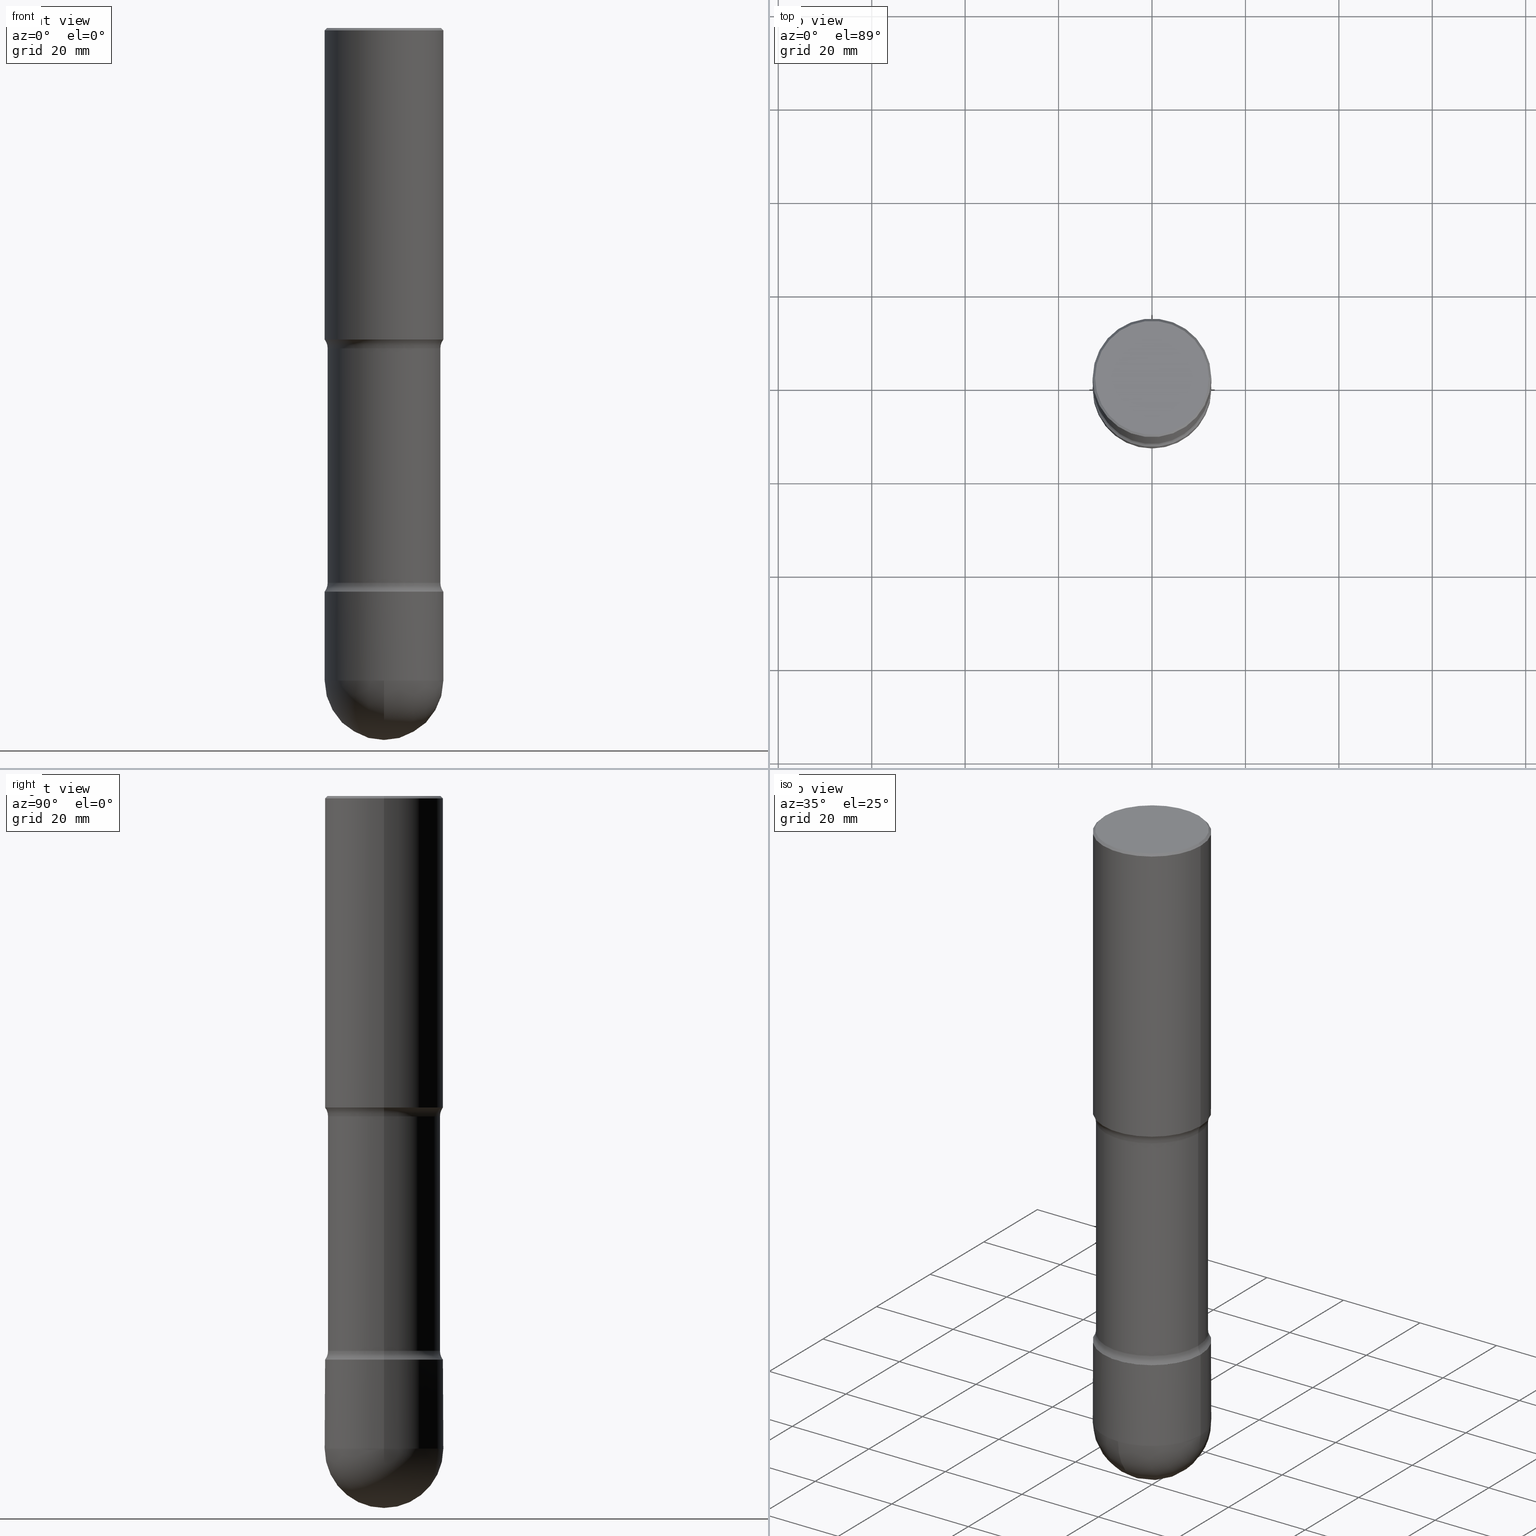
[diagram: canonical four-view strip — front | top / right | iso, engineering-drawing reading convention]
A machine part, canonical four-view strip (front | top / right | iso — engineering-drawing reading convention). The complete STEP part file that produces these views, byte-faithful:
ISO-10303-21;
HEADER;
FILE_DESCRIPTION (( 'STEP AP203' ),
    '1' );
FILE_NAME ('35231.STEP',
    '2024-02-29T19:24:45',
    ( '' ),
    ( '' ),
    'SwSTEP 2.0',
    'SolidWorks 2023',
    '' );
FILE_SCHEMA (( 'CONFIG_CONTROL_DESIGN' ));
ENDSEC;

DATA;
#1 = EDGE_CURVE ( 'NONE', #144, #248, #93, .T. ) ;
#2 = EDGE_LOOP ( 'NONE', ( #106, #254, #119, #318 ) ) ;
#3 = FACE_OUTER_BOUND ( 'NONE', #287, .T. ) ;
#4 = CIRCLE ( 'NONE', #172, 0.5000000000000000000 ) ;
#5 = APPROVAL_PERSON_ORGANIZATION ( #81, #520, #398 ) ;
#6 = DIRECTION ( 'NONE',  ( -2.438088387897960049E-29, 3.491481338843145188E-15, 1.000000000000000000 ) ) ;
#7 = CARTESIAN_POINT ( 'NONE',  ( 1.340732011955928297E-28, -1.926437970359467045E-14, -5.500000000000000888 ) ) ;
#8 = DIRECTION ( 'NONE',  ( 2.445468806185136597E-29, -3.491481338843145583E-15, -1.000000000000000000 ) ) ;
#9 = ORIENTED_EDGE ( 'NONE', *, *, #68, .T. ) ;
#10 = ADVANCED_FACE ( 'NONE', ( #485 ), #271, .T. ) ;
#11 = CARTESIAN_POINT ( 'NONE',  ( 0.000000000000000000, 0.000000000000000000, 0.000000000000000000 ) ) ;
#12 = VERTEX_POINT ( 'NONE', #450 ) ;
#13 = AXIS2_PLACEMENT_3D ( 'NONE', #49, #6, #405 ) ;
#14 = CIRCLE ( 'NONE', #451, 0.1249999999999883565 ) ;
#15 = CIRCLE ( 'NONE', #278, 0.4997860788667682908 ) ;
#16 = DIRECTION ( 'NONE',  ( -1.000000000000000000, 6.860497997771519729E-15, 0.000000000000000000 ) ) ;
#17 = ORIENTED_EDGE ( 'NONE', *, *, #170, .F. ) ;
#18 = CARTESIAN_POINT ( 'NONE',  ( 0.4994999999999991114, -2.007302563652160412E-14, -4.750000000000000000 ) ) ;
#19 = DIRECTION ( 'NONE',  ( -6.982962677686266711E-15, -1.000000000000000000, 3.491481338843145583E-15 ) ) ;
#20 = ORIENTED_EDGE ( 'NONE', *, *, #30, .T. ) ;
#21 = CYLINDRICAL_SURFACE ( 'NONE', #62, 0.4999999999999997780 ) ;
#22 = CARTESIAN_POINT ( 'NONE',  ( 4.890937612370354609E-31, -6.982962677686407473E-17, -0.02000000000000033348 ) ) ;
#23 = ORIENTED_EDGE ( 'NONE', *, *, #459, .T. ) ;
#24 = DIRECTION ( 'NONE',  ( -2.445468806185136877E-29, 3.491481338843145188E-15, 1.000000000000000000 ) ) ;
#25 = DIRECTION ( 'NONE',  ( 2.445468806185136597E-29, -3.491481338843145583E-15, -1.000000000000000000 ) ) ;
#26 = DIRECTION ( 'NONE',  ( 1.000000000000000000, -6.982962677686268288E-15, 0.000000000000000000 ) ) ;
#27 = VECTOR ( 'NONE', #180, 39.37007874015748143 ) ;
#28 = DIRECTION ( 'NONE',  ( -1.000000000000000000, 6.982962677686265922E-15, -4.876176775795935793E-29 ) ) ;
#29 = ORIENTED_EDGE ( 'NONE', *, *, #391, .F. ) ;
#30 = EDGE_CURVE ( 'NONE', #428, #514, #179, .T. ) ;
#31 = APPLICATION_PROTOCOL_DEFINITION ( 'international standard', 'config_control_design', 1994, #369 ) ;
#32 = DATE_AND_TIME ( #211, #513 ) ;
#33 = CONICAL_SURFACE ( 'NONE', #130, 0.4994999999999991114, 0.7853981633973289300 ) ;
#34 = AXIS2_PLACEMENT_3D ( 'NONE', #493, #284, #98 ) ;
#35 = EDGE_CURVE ( 'NONE', #70, #428, #373, .T. ) ;
#36 = SHAPE_DEFINITION_REPRESENTATION ( #417, #257 ) ;
#37 = DESIGN_CONTEXT ( 'detailed design', #369, 'design' ) ;
#38 = APPLICATION_CONTEXT ( 'configuration controlled 3d designs of mechanical parts and assemblies' ) ;
#39 = APPROVAL_DATE_TIME ( #265, #520 ) ;
#40 = PERSON ( 'UNSPECIFIED', 'UNSPECIFIED', 'UNSPECIFIED', ('UNSPECIFIED'), ('UNSPECIFIED'), ('UNSPECIFIED') ) ;
#41 = PERSON_AND_ORGANIZATION_ROLE ( 'creator' ) ;
#42 = EDGE_CURVE ( 'NONE', #60, #514, #352, .T. ) ;
#43 = AXIS2_PLACEMENT_3D ( 'NONE', #279, #371, #406 ) ;
#44 = CC_DESIGN_APPROVAL ( #520, ( #167 ) ) ;
#45 = COORDINATED_UNIVERSAL_TIME_OFFSET ( 5, 0, .BEHIND. ) ;
#46 = ADVANCED_FACE ( 'NONE', ( #246 ), #33, .T. ) ;
#47 = CARTESIAN_POINT ( 'NONE',  ( 1.340732011955928297E-28, -1.926437970359467045E-14, -5.500000000000000888 ) ) ;
#48 = DIRECTION ( 'NONE',  ( 0.7071067811864630848, -2.468850131081372353E-15, 0.7071067811866319497 ) ) ;
#49 = CARTESIAN_POINT ( 'NONE',  ( 3.351822085289404392E-15, 0.4799999999999995381, -1.667374017664507456E-15 ) ) ;
#50 = CYLINDRICAL_SURFACE ( 'NONE', #400, 0.4999999999999997780 ) ;
#51 = AXIS2_PLACEMENT_3D ( 'NONE', #156, #25, #202 ) ;
#52 = SECURITY_CLASSIFICATION ( '', '', #521 ) ;
#53 = DIRECTION ( 'NONE',  ( 2.445468806185136877E-29, -3.491481338843145188E-15, -1.000000000000000000 ) ) ;
#54 = DIRECTION ( 'NONE',  ( -1.000000000000000000, 6.982962677686266711E-15, -4.883557194083113462E-29 ) ) ;
#55 = DIRECTION ( 'NONE',  ( 2.445468806185136597E-29, -3.491481338843145583E-15, -1.000000000000000000 ) ) ;
#56 = CC_DESIGN_DATE_AND_TIME_ASSIGNMENT ( #517, #127, ( #264 ) ) ;
#57 = CARTESIAN_POINT ( 'NONE',  ( 1.161597682937940108E-28, -1.658453635950494339E-14, -4.750000000000000000 ) ) ;
#58 = CARTESIAN_POINT ( 'NONE',  ( 0.4799999999999995381, -3.396558832296479732E-15, 2.359727204893466567E-29 ) ) ;
#59 = DIRECTION ( 'NONE',  ( -1.000000000000000000, 6.982962677686266711E-15, -4.883557194083113462E-29 ) ) ;
#60 = VERTEX_POINT ( 'NONE', #298 ) ;
#61 = VERTEX_POINT ( 'NONE', #72 ) ;
#62 = AXIS2_PLACEMENT_3D ( 'NONE', #199, #320, #533 ) ;
#63 = CC_DESIGN_SECURITY_CLASSIFICATION ( #52, ( #167 ) ) ;
#64 = EDGE_LOOP ( 'NONE', ( #466, #297, #332, #186 ) ) ;
#65 = CARTESIAN_POINT ( 'NONE',  ( 0.000000000000000000, 0.000000000000000000, 0.000000000000000000 ) ) ;
#66 = EDGE_LOOP ( 'NONE', ( #195, #154, #376, #411 ) ) ;
#67 = DIRECTION ( 'NONE',  ( 2.445468806185136597E-29, -3.491481338843145583E-15, -1.000000000000000000 ) ) ;
#68 = EDGE_CURVE ( 'NONE', #365, #151, #88, .T. ) ;
#69 = DIRECTION ( 'NONE',  ( 2.445468806185136597E-29, -3.491481338843145583E-15, -1.000000000000000000 ) ) ;
#70 = VERTEX_POINT ( 'NONE', #161 ) ;
#71 = CARTESIAN_POINT ( 'NONE',  ( 6.419355616235991414E-29, -9.165138514463269234E-15, -2.625000000000003109 ) ) ;
#72 = CARTESIAN_POINT ( 'NONE',  ( -0.4799999999999995381, 3.351822085289404787E-15, -2.340564852382046882E-29 ) ) ;
#73 = CARTESIAN_POINT ( 'NONE',  ( -0.4749999999999996447, -1.300576798719073170E-14, -4.674999999999999822 ) ) ;
#74 = ORIENTED_EDGE ( 'NONE', *, *, #35, .T. ) ;
#75 = DIRECTION ( 'NONE',  ( -2.445468806185136597E-29, 3.491481338843145583E-15, 1.000000000000000000 ) ) ;
#76 = CIRCLE ( 'NONE', #203, 0.4749999999999993672 ) ;
#77 = DIRECTION ( 'NONE',  ( 2.445468806185136597E-29, -3.491481338843145583E-15, -1.000000000000000000 ) ) ;
#78 = TOROIDAL_SURFACE ( 'NONE', #538, 0.6000000000000026423, 0.1250000000000030254 ) ;
#79 = APPROVAL ( #356, 'UNSPECIFIED' ) ;
#80 = VERTEX_POINT ( 'NONE', #497 ) ;
#81 = PERSON_AND_ORGANIZATION ( #40, #192 ) ;
#82 = ADVANCED_FACE ( 'NONE', ( #107 ), #164, .F. ) ;
#83 = VECTOR ( 'NONE', #150, 39.37007874015748143 ) ;
#84 = TOROIDAL_SURFACE ( 'NONE', #481, 0.5999999999999877653, 0.1249999999999883427 ) ;
#85 = DATE_AND_TIME ( #435, #359 ) ;
#86 = COORDINATED_UNIVERSAL_TIME_OFFSET ( 5, 0, .BEHIND. ) ;
#87 = EDGE_CURVE ( 'NONE', #514, #60, #314, .T. ) ;
#88 = CIRCLE ( 'NONE', #443, 0.4999999999999990563 ) ;
#89 = CIRCLE ( 'NONE', #415, 0.4999999999999993339 ) ;
#90 = VECTOR ( 'NONE', #289, 39.37007874015748143 ) ;
#91 = FACE_OUTER_BOUND ( 'NONE', #64, .T. ) ;
#92 = CARTESIAN_POINT ( 'NONE',  ( 0.4997860788667682908, -2.001231891385972793E-14, -4.749713921133230876 ) ) ;
#93 = LINE ( 'NONE', #529, #266 ) ;
#94 = LINE ( 'NONE', #455, #165 ) ;
#95 = EDGE_CURVE ( 'NONE', #99, #500, #146, .T. ) ;
#96 = VERTEX_POINT ( 'NONE', #346 ) ;
#97 = DIRECTION ( 'NONE',  ( 6.982962677686265922E-15, 1.000000000000000000, -4.370956789862827460E-15 ) ) ;
#98 = DIRECTION ( 'NONE',  ( -1.000000000000000000, 6.982962677686266711E-15, 0.000000000000000000 ) ) ;
#99 = VERTEX_POINT ( 'NONE', #242 ) ;
#100 = AXIS2_PLACEMENT_3D ( 'NONE', #11, #276, #539 ) ;
#101 = APPROVAL_PERSON_ORGANIZATION ( #522, #79, #132 ) ;
#102 = VERTEX_POINT ( 'NONE', #336 ) ;
#103 = ORIENTED_EDGE ( 'NONE', *, *, #475, .F. ) ;
#104 = CARTESIAN_POINT ( 'NONE',  ( 6.602765776699870157E-29, -9.426999614876493191E-15, -2.700000000000000178 ) ) ;
#105 = ORIENTED_EDGE ( 'NONE', *, *, #149, .T. ) ;
#106 = ORIENTED_EDGE ( 'NONE', *, *, #367, .T. ) ;
#107 = FACE_OUTER_BOUND ( 'NONE', #337, .T. ) ;
#108 = LENGTH_MEASURE_WITH_UNIT ( LENGTH_MEASURE( 0.02539999999999999897 ), #252 );
#109 = EDGE_LOOP ( 'NONE', ( #324, #419, #182, #243 ) ) ;
#110 = ORIENTED_EDGE ( 'NONE', *, *, #176, .T. ) ;
#111 = DIRECTION ( 'NONE',  ( 6.860497997771531562E-15, 1.000000000000000000, -3.491481338843145583E-15 ) ) ;
#112 = EDGE_CURVE ( 'NONE', #382, #514, #277, .T. ) ;
#113 = ORIENTED_EDGE ( 'NONE', *, *, #280, .F. ) ;
#114 = AXIS2_PLACEMENT_3D ( 'NONE', #226, #218, #294 ) ;
#115 = MANIFOLD_SOLID_BREP ( 'Body-Move/Copy2[1]', #328 ) ;
#116 = CIRCLE ( 'NONE', #178, 0.4999999999999991673 ) ;
#117 = AXIS2_PLACEMENT_3D ( 'NONE', #301, #77, #118 ) ;
#118 = DIRECTION ( 'NONE',  ( -1.000000000000000000, 6.982962677686264344E-15, 0.000000000000000000 ) ) ;
#119 = ORIENTED_EDGE ( 'NONE', *, *, #396, .F. ) ;
#120 = CARTESIAN_POINT ( 'NONE',  ( -3.552713678800360118E-15, -0.5000000000000184297, -5.499999999999999112 ) ) ;
#121 = ORIENTED_EDGE ( 'NONE', *, *, #208, .F. ) ;
#122 = CARTESIAN_POINT ( 'NONE',  ( 0.000000000000000000, 0.000000000000000000, 0.000000000000000000 ) ) ;
#123 = ORIENTED_EDGE ( 'NONE', *, *, #87, .F. ) ;
#124 = CC_DESIGN_DATE_AND_TIME_ASSIGNMENT ( #32, #174, ( #52 ) ) ;
#125 = AXIS2_PLACEMENT_3D ( 'NONE', #187, #111, #16 ) ;
#126 = APPROVAL_PERSON_ORGANIZATION ( #311, #245, #439 ) ;
#127 = DATE_TIME_ROLE ( 'creation_date' ) ;
#128 = ORIENTED_EDGE ( 'NONE', *, *, #42, .F. ) ;
#129 = DATE_AND_TIME ( #397, #389 ) ;
#130 = AXIS2_PLACEMENT_3D ( 'NONE', #425, #431, #553 ) ;
#131 = CIRCLE ( 'NONE', #395, 0.4999999999999990563 ) ;
#132 = APPROVAL_ROLE ( '' ) ;
#133 = EDGE_CURVE ( 'NONE', #365, #80, #249, .T. ) ;
#134 = COORDINATED_UNIVERSAL_TIME_OFFSET ( 5, 0, .BEHIND. ) ;
#135 = CIRCLE ( 'NONE', #489, 0.1249999999999883565 ) ;
#136 = ORIENTED_EDGE ( 'NONE', *, *, #515, .T. ) ;
#137 = CARTESIAN_POINT ( 'NONE',  ( 1.161597682937940108E-28, -1.658453635950494339E-14, -4.750000000000000000 ) ) ;
#138 = DIRECTION ( 'NONE',  ( 1.000000000000000000, -6.982962677686262766E-15, 0.000000000000000000 ) ) ;
#139 = ADVANCED_FACE ( 'NONE', ( #546 ), #462, .T. ) ;
#140 = ORIENTED_EDGE ( 'NONE', *, *, #407, .F. ) ;
#141 = LINE ( 'NONE', #452, #27 ) ;
#142 = CARTESIAN_POINT ( 'NONE',  ( -0.4749999999999993672, -6.110092342975520448E-15, -2.700000000000000178 ) ) ;
#143 = DIRECTION ( 'NONE',  ( 6.982962677686265922E-15, 1.000000000000000000, 0.000000000000000000 ) ) ;
#144 = VERTEX_POINT ( 'NONE', #385 ) ;
#145 = VECTOR ( 'NONE', #53, 39.37007874015748143 ) ;
#146 = CIRCLE ( 'NONE', #51, 0.4994999999999991114 ) ;
#147 = CIRCLE ( 'NONE', #453, 0.4799999999999995381 ) ;
#148 = DIRECTION ( 'NONE',  ( 2.445468806185136597E-29, -3.491481338843145583E-15, -1.000000000000000000 ) ) ;
#149 = EDGE_CURVE ( 'NONE', #543, #248, #303, .T. ) ;
#150 = DIRECTION ( 'NONE',  ( -0.7071067811864630848, 7.493145998870049660E-15, 0.7071067811866319497 ) ) ;
#151 = VERTEX_POINT ( 'NONE', #120 ) ;
#152 = ORIENTED_EDGE ( 'NONE', *, *, #112, .F. ) ;
#153 = CYLINDRICAL_SURFACE ( 'NONE', #117, 0.4749999999999995337 ) ;
#154 = ORIENTED_EDGE ( 'NONE', *, *, #350, .T. ) ;
#155 = DIRECTION ( 'NONE',  ( -1.000000000000000000, 6.982962677686266711E-15, 0.000000000000000000 ) ) ;
#156 = CARTESIAN_POINT ( 'NONE',  ( 1.161597682937940108E-28, -1.658453635950494339E-14, -4.750000000000000000 ) ) ;
#157 = TOROIDAL_SURFACE ( 'NONE', #312, 0.6000000000000026423, 0.1250000000000030254 ) ;
#158 = VERTEX_POINT ( 'NONE', #387 ) ;
#159 = ORIENTED_EDGE ( 'NONE', *, *, #360, .T. ) ;
#160 = CC_DESIGN_PERSON_AND_ORGANIZATION_ASSIGNMENT ( #216, #171, ( #264 ) ) ;
#161 = CARTESIAN_POINT ( 'NONE',  ( 0.4749999999999993672, -1.264056183858350096E-14, -2.700000000000000178 ) ) ;
#162 = DIRECTION ( 'NONE',  ( 2.438088387897960049E-29, -3.491481338843145188E-15, -1.000000000000000000 ) ) ;
#163 =( NAMED_UNIT ( * ) SI_UNIT ( $, .STERADIAN. ) SOLID_ANGLE_UNIT ( ) );
#164 = TOROIDAL_SURFACE ( 'NONE', #480, 0.5999999999999877653, 0.1249999999999883427 ) ;
#165 = VECTOR ( 'NONE', #272, 39.37007874015748143 ) ;
#166 = DIRECTION ( 'NONE',  ( 2.445468806185136597E-29, -3.491481338843145583E-15, -1.000000000000000000 ) ) ;
#167 = PRODUCT_DEFINITION_FORMATION_WITH_SPECIFIED_SOURCE ( 'ANY', '', #377, .NOT_KNOWN. ) ;
#168 = DIMENSIONAL_EXPONENTS ( 1.000000000000000000, 0.000000000000000000, 0.000000000000000000, 0.000000000000000000, 0.000000000000000000, 0.000000000000000000, 0.000000000000000000 ) ;
#169 = EDGE_LOOP ( 'NONE', ( #140, #121, #551, #532 ) ) ;
#170 = EDGE_CURVE ( 'NONE', #416, #382, #191, .T. ) ;
#171 = PERSON_AND_ORGANIZATION_ROLE ( 'creator' ) ;
#172 = AXIS2_PLACEMENT_3D ( 'NONE', #181, #327, #232 ) ;
#173 = EDGE_CURVE ( 'NONE', #12, #80, #444, .T. ) ;
#174 = DATE_TIME_ROLE ( 'classification_date' ) ;
#175 = ORIENTED_EDGE ( 'NONE', *, *, #42, .T. ) ;
#176 = EDGE_CURVE ( 'NONE', #70, #543, #14, .T. ) ;
#177 = DIRECTION ( 'NONE',  ( -2.445468806185136597E-29, 3.491481338843145583E-15, 1.000000000000000000 ) ) ;
#178 = AXIS2_PLACEMENT_3D ( 'NONE', #366, #527, #374 ) ;
#179 = LINE ( 'NONE', #321, #145 ) ;
#180 = DIRECTION ( 'NONE',  ( -0.7071067811865426878, 2.468850131082206573E-15, -0.7071067811865523467 ) ) ;
#181 = CARTESIAN_POINT ( 'NONE',  ( 6.419355616235991414E-29, -9.165138514463269234E-15, -2.625000000000003109 ) ) ;
#182 = ORIENTED_EDGE ( 'NONE', *, *, #112, .T. ) ;
#183 = CARTESIAN_POINT ( 'NONE',  ( 1.345007843401825128E-28, -1.920314736363730603E-14, -5.500000000000000888 ) ) ;
#184 = FACE_OUTER_BOUND ( 'NONE', #381, .T. ) ;
#185 = ORIENTED_EDGE ( 'NONE', *, *, #407, .T. ) ;
#186 = ORIENTED_EDGE ( 'NONE', *, *, #459, .F. ) ;
#187 = CARTESIAN_POINT ( 'NONE',  ( 0.6000000000000026423, -2.043897405775464090E-14, -4.674999999999999822 ) ) ;
#188 = CARTESIAN_POINT ( 'NONE',  ( 1.340732011955928297E-28, -1.926437970359467045E-14, -5.500000000000000888 ) ) ;
#189 = ORIENTED_EDGE ( 'NONE', *, *, #308, .F. ) ;
#190 = EDGE_LOOP ( 'NONE', ( #347, #261, #410, #340 ) ) ;
#191 = CIRCLE ( 'NONE', #34, 0.4997860788667682908 ) ;
#192 = ORGANIZATION ( 'UNSPECIFIED', 'UNSPECIFIED', '' ) ;
#193 = ADVANCED_FACE ( 'NONE', ( #361 ), #21, .T. ) ;
#194 = DIRECTION ( 'NONE',  ( -1.000000000000000000, 6.982962677686266711E-15, 0.000000000000000000 ) ) ;
#195 = ORIENTED_EDGE ( 'NONE', *, *, #236, .F. ) ;
#196 = CARTESIAN_POINT ( 'NONE',  ( 0.5000000000000000000, -8.047733069505829681E-15, -2.625000000000003109 ) ) ;
#197 = DIRECTION ( 'NONE',  ( -2.445468806185136597E-29, 3.491481338843145583E-15, 1.000000000000000000 ) ) ;
#198 = ORIENTED_EDGE ( 'NONE', *, *, #442, .T. ) ;
#199 = CARTESIAN_POINT ( 'NONE',  ( 1.161597682937940108E-28, -1.658453635950494339E-14, -4.750000000000000000 ) ) ;
#200 = ORIENTED_EDGE ( 'NONE', *, *, #360, .F. ) ;
#201 = EDGE_CURVE ( 'NONE', #96, #102, #388, .T. ) ;
#202 = DIRECTION ( 'NONE',  ( -1.000000000000000000, 6.982962677686268288E-15, 0.000000000000000000 ) ) ;
#203 = AXIS2_PLACEMENT_3D ( 'NONE', #424, #530, #363 ) ;
#204 = FACE_OUTER_BOUND ( 'NONE', #190, .T. ) ;
#205 = EDGE_LOOP ( 'NONE', ( #510, #345 ) ) ;
#206 = FACE_OUTER_BOUND ( 'NONE', #229, .T. ) ;
#207 = DIRECTION ( 'NONE',  ( -1.000000000000000000, 6.982962677686266711E-15, -4.876176775795935793E-29 ) ) ;
#208 = EDGE_CURVE ( 'NONE', #500, #99, #353, .T. ) ;
#209 = AXIS2_PLACEMENT_3D ( 'NONE', #422, #508, #253 ) ;
#210 = COORDINATED_UNIVERSAL_TIME_OFFSET ( 5, 0, .BEHIND. ) ;
#211 = CALENDAR_DATE ( 2024, 29, 2 ) ;
#212 = CC_DESIGN_PERSON_AND_ORGANIZATION_ASSIGNMENT ( #518, #561, ( #52 ) ) ;
#213 = DIRECTION ( 'NONE',  ( 1.000000000000000000, -6.982962677686269077E-15, 0.000000000000000000 ) ) ;
#214 = AXIS2_PLACEMENT_3D ( 'NONE', #188, #379, #97 ) ;
#215 = CARTESIAN_POINT ( 'NONE',  ( 0.5999999999999877653, -1.354329841353932788E-14, -2.700000000000000178 ) ) ;
#216 = PERSON_AND_ORGANIZATION ( #40, #192 ) ;
#217 = CARTESIAN_POINT ( 'NONE',  ( 1.143256666891551449E-28, -1.632267525909170681E-14, -4.674999999999999822 ) ) ;
#218 = DIRECTION ( 'NONE',  ( 2.445468806185136597E-29, -3.491481338843145583E-15, -1.000000000000000000 ) ) ;
#219 = DIRECTION ( 'NONE',  ( 1.000000000000000000, -6.982962677686266711E-15, 4.876176775795935232E-29 ) ) ;
#220 = DIRECTION ( 'NONE',  ( -1.000000000000000000, 6.982962677686265922E-15, -4.883557194083112901E-29 ) ) ;
#221 = DIRECTION ( 'NONE',  ( 2.445468806185136877E-29, -3.491481338843145188E-15, -1.000000000000000000 ) ) ;
#222 = CARTESIAN_POINT ( 'NONE',  ( -0.4999999999999990563, -1.434112818277063167E-14, -5.500000000000000888 ) ) ;
#223 = ORIENTED_EDGE ( 'NONE', *, *, #495, .F. ) ;
#224 = AXIS2_PLACEMENT_3D ( 'NONE', #57, #55, #326 ) ;
#225 = AXIS2_PLACEMENT_3D ( 'NONE', #471, #465, #28 ) ;
#226 = CARTESIAN_POINT ( 'NONE',  ( 6.602765776699870157E-29, -9.426999614876493191E-15, -2.700000000000000178 ) ) ;
#227 = CARTESIAN_POINT ( 'NONE',  ( 0.4999999999999996114, -3.500078625662627502E-15, -0.02000000000000033348 ) ) ;
#228 = CARTESIAN_POINT ( 'NONE',  ( 4.890937612370354609E-31, -6.982962677686407473E-17, -0.02000000000000033348 ) ) ;
#229 = EDGE_LOOP ( 'NONE', ( #494, #185, #136, #103 ) ) ;
#230 = DIRECTION ( 'NONE',  ( 2.445468806185136597E-29, -3.491481338843145583E-15, -1.000000000000000000 ) ) ;
#231 = LINE ( 'NONE', #275, #375 ) ;
#232 = DIRECTION ( 'NONE',  ( -1.000000000000000000, 6.982962677686266711E-15, 0.000000000000000000 ) ) ;
#233 = ORIENTED_EDGE ( 'NONE', *, *, #259, .T. ) ;
#234 = DIRECTION ( 'NONE',  ( 6.982962677686265922E-15, 1.000000000000000000, -4.370956789862827460E-15 ) ) ;
#235 = ORIENTED_EDGE ( 'NONE', *, *, #383, .F. ) ;
#236 = EDGE_CURVE ( 'NONE', #552, #543, #231, .T. ) ;
#237 = FACE_OUTER_BOUND ( 'NONE', #109, .T. ) ;
#238 = ORIENTED_EDGE ( 'NONE', *, *, #342, .F. ) ;
#239 = DIRECTION ( 'NONE',  ( -2.445468806185136597E-29, 3.491481338843145583E-15, 1.000000000000000000 ) ) ;
#240 = ORIENTED_EDGE ( 'NONE', *, *, #133, .T. ) ;
#241 = PERSON_AND_ORGANIZATION_ROLE ( 'design_owner' ) ;
#242 = CARTESIAN_POINT ( 'NONE',  ( -0.4994999999999991114, -1.303385961856767947E-14, -4.750000000000000000 ) ) ;
#243 = ORIENTED_EDGE ( 'NONE', *, *, #87, .T. ) ;
#244 = DIRECTION ( 'NONE',  ( -7.105427357601000281E-15, -1.000000000000000000, 0.000000000000000000 ) ) ;
#245 = APPROVAL ( #263, 'UNSPECIFIED' ) ;
#246 = FACE_OUTER_BOUND ( 'NONE', #169, .T. ) ;
#247 =( CONVERSION_BASED_UNIT ( 'INCH', #108 ) LENGTH_UNIT ( ) NAMED_UNIT ( #168 ) );
#248 = VERTEX_POINT ( 'NONE', #490 ) ;
#249 = LINE ( 'NONE', #499, #330 ) ;
#250 = ORIENTED_EDGE ( 'NONE', *, *, #30, .F. ) ;
#251 = CARTESIAN_POINT ( 'NONE',  ( 1.345007843401825128E-28, -1.920314736363730603E-14, -5.500000000000000888 ) ) ;
#252 =( LENGTH_UNIT ( ) NAMED_UNIT ( * ) SI_UNIT ( $, .METRE. ) );
#253 = DIRECTION ( 'NONE',  ( 1.000000000000000000, -6.982962677686265133E-15, 0.000000000000000000 ) ) ;
#254 = ORIENTED_EDGE ( 'NONE', *, *, #236, .T. ) ;
#255 = CARTESIAN_POINT ( 'NONE',  ( 1.161597682937940108E-28, -1.658453635950494339E-14, -4.750000000000000000 ) ) ;
#256 = DIRECTION ( 'NONE',  ( -1.000000000000000000, 6.982962677686265922E-15, -4.876176775795935793E-29 ) ) ;
#257 = ADVANCED_BREP_SHAPE_REPRESENTATION ( '35231', ( #115, #478, #378 ), #565 ) ;
#258 =( NAMED_UNIT ( * ) PLANE_ANGLE_UNIT ( ) SI_UNIT ( $, .RADIAN. ) );
#259 = EDGE_CURVE ( 'NONE', #61, #144, #141, .T. ) ;
#260 = DIRECTION ( 'NONE',  ( -1.000000000000000000, 6.982962677686266711E-15, 0.000000000000000000 ) ) ;
#261 = ORIENTED_EDGE ( 'NONE', *, *, #270, .T. ) ;
#262 = AXIS2_PLACEMENT_3D ( 'NONE', #7, #412, #143 ) ;
#263 = APPROVAL_STATUS ( 'not_yet_approved' ) ;
#264 = PRODUCT_DEFINITION ( 'UNKNOWN', '', #167, #37 ) ;
#265 = DATE_AND_TIME ( #403, #445 ) ;
#266 = VECTOR ( 'NONE', #273, 39.37007874015748143 ) ;
#267 = AXIS2_PLACEMENT_3D ( 'NONE', #564, #516, #260 ) ;
#268 = CARTESIAN_POINT ( 'NONE',  ( 1.340732011955928297E-28, -1.926437970359467045E-14, -5.500000000000000888 ) ) ;
#269 = FACE_OUTER_BOUND ( 'NONE', #541, .T. ) ;
#270 = EDGE_CURVE ( 'NONE', #362, #552, #322, .T. ) ;
#271 = PLANE ( 'NONE',  #13 ) ;
#272 = DIRECTION ( 'NONE',  ( -2.445468806185136877E-29, 3.491481338843145188E-15, 1.000000000000000000 ) ) ;
#273 = DIRECTION ( 'NONE',  ( 2.445468806185136877E-29, -3.491481338843145188E-15, -1.000000000000000000 ) ) ;
#274 = DIRECTION ( 'NONE',  ( 2.445468806185136597E-29, -3.491481338843145583E-15, -1.000000000000000000 ) ) ;
#275 = CARTESIAN_POINT ( 'NONE',  ( 0.4999999999999997780, -2.001478535839070602E-14, -4.750000000000000000 ) ) ;
#276 = DIRECTION ( 'NONE',  ( 2.445468806185136597E-29, -3.491481338843145583E-15, -1.000000000000000000 ) ) ;
#277 = CIRCLE ( 'NONE', #209, 0.1250000000000030254 ) ;
#278 = AXIS2_PLACEMENT_3D ( 'NONE', #498, #384, #295 ) ;
#279 = CARTESIAN_POINT ( 'NONE',  ( 1.345007843401825128E-28, -1.920314736363730603E-14, -5.500000000000000888 ) ) ;
#280 = EDGE_CURVE ( 'NONE', #102, #365, #131, .T. ) ;
#281 = DIRECTION ( 'NONE',  ( -1.000000000000000000, 6.982962677686265922E-15, 0.000000000000000000 ) ) ;
#282 = ORIENTED_EDGE ( 'NONE', *, *, #442, .F. ) ;
#283 = ADVANCED_FACE ( 'NONE', ( #206 ), #357, .T. ) ;
#284 = DIRECTION ( 'NONE',  ( 2.445468806185136597E-29, -3.491481338843145583E-15, -1.000000000000000000 ) ) ;
#285 = ORIENTED_EDGE ( 'NONE', *, *, #201, .T. ) ;
#286 = CARTESIAN_POINT ( 'NONE',  ( -0.4997860788667682908, -1.309354998492637240E-14, -4.749713921133230876 ) ) ;
#287 = EDGE_LOOP ( 'NONE', ( #29, #470, #288, #113 ) ) ;
#288 = ORIENTED_EDGE ( 'NONE', *, *, #68, .F. ) ;
#289 = DIRECTION ( 'NONE',  ( 2.445468806185136877E-29, -3.491481338843145188E-15, -1.000000000000000000 ) ) ;
#290 = ORIENTED_EDGE ( 'NONE', *, *, #35, .F. ) ;
#291 = AXIS2_PLACEMENT_3D ( 'NONE', #464, #69, #549 ) ;
#292 = AXIS2_PLACEMENT_3D ( 'NONE', #228, #449, #194 ) ;
#293 = ADVANCED_FACE ( 'NONE', ( #433 ), #78, .F. ) ;
#294 = DIRECTION ( 'NONE',  ( -1.000000000000000000, 6.982962677686266711E-15, 0.000000000000000000 ) ) ;
#295 = DIRECTION ( 'NONE',  ( -1.000000000000000000, 6.982962677686266711E-15, 0.000000000000000000 ) ) ;
#296 = EDGE_LOOP ( 'NONE', ( #17, #507, #175, #152 ) ) ;
#297 = ORIENTED_EDGE ( 'NONE', *, *, #391, .T. ) ;
#298 = CARTESIAN_POINT ( 'NONE',  ( 0.4749999999999996447, -1.613357398592557292E-14, -4.674999999999999822 ) ) ;
#299 = DIRECTION ( 'NONE',  ( 1.000000000000000000, 0.000000000000000000, 0.000000000000000000 ) ) ;
#300 = DIRECTION ( 'NONE',  ( -1.000000000000000000, 6.982962677686266711E-15, -4.883557194083112340E-29 ) ) ;
#301 = CARTESIAN_POINT ( 'NONE',  ( 1.161597682937940108E-28, -1.658453635950494339E-14, -4.750000000000000000 ) ) ;
#302 = UNCERTAINTY_MEASURE_WITH_UNIT (LENGTH_MEASURE( 1.000000000000000082E-05 ), #247, 'distance_accuracy_value', 'NONE');
#303 = CIRCLE ( 'NONE', #503, 0.5000000000000000000 ) ;
#304 = LINE ( 'NONE', #426, #90 ) ;
#305 = EDGE_CURVE ( 'NONE', #158, #151, #89, .T. ) ;
#306 = CALENDAR_DATE ( 2024, 29, 2 ) ;
#307 = PERSON_AND_ORGANIZATION ( #40, #192 ) ;
#308 = EDGE_CURVE ( 'NONE', #428, #70, #76, .T. ) ;
#309 = CLOSED_SHELL ( 'NONE', ( #283, #293, #482, #82, #355, #506, #448, #193, #469, #420, #479, #46, #556, #10 ) ) ;
#310 = AXIS2_PLACEMENT_3D ( 'NONE', #414, #177, #219 ) ;
#311 = PERSON_AND_ORGANIZATION ( #40, #192 ) ;
#312 = AXIS2_PLACEMENT_3D ( 'NONE', #554, #555, #394 ) ;
#313 = APPROVAL_DATE_TIME ( #129, #79 ) ;
#314 = CIRCLE ( 'NONE', #460, 0.4749999999999996447 ) ;
#315 = CIRCLE ( 'NONE', #125, 0.1250000000000030254 ) ;
#316 = LOCAL_TIME ( 14, 24, 45.00000000000000000, #134 ) ;
#317 = ADVANCED_FACE ( 'NONE', ( #91 ), #526, .T. ) ;
#318 = ORIENTED_EDGE ( 'NONE', *, *, #1, .F. ) ;
#319 = DIRECTION ( 'NONE',  ( -1.000000000000000000, 6.982962677686264344E-15, 0.000000000000000000 ) ) ;
#320 = DIRECTION ( 'NONE',  ( 2.445468806185136597E-29, -3.491481338843145583E-15, -1.000000000000000000 ) ) ;
#321 = CARTESIAN_POINT ( 'NONE',  ( -0.4749999999999995337, -1.326762908760396986E-14, -4.750000000000000000 ) ) ;
#322 = LINE ( 'NONE', #227, #558 ) ;
#323 = LINE ( 'NONE', #531, #83 ) ;
#324 = ORIENTED_EDGE ( 'NONE', *, *, #338, .F. ) ;
#325 = CC_DESIGN_PERSON_AND_ORGANIZATION_ASSIGNMENT ( #307, #566, ( #167 ) ) ;
#326 = DIRECTION ( 'NONE',  ( -1.000000000000000000, 6.982962677686268288E-15, 0.000000000000000000 ) ) ;
#327 = DIRECTION ( 'NONE',  ( 2.445468806185136597E-29, -3.491481338843145583E-15, -1.000000000000000000 ) ) ;
#328 = CLOSED_SHELL ( 'NONE', ( #139, #402, #317, #438, #560 ) ) ;
#329 = ORIENTED_EDGE ( 'NONE', *, *, #528, .T. ) ;
#330 = VECTOR ( 'NONE', #24, 39.37007874015748143 ) ;
#331 = CARTESIAN_POINT ( 'NONE',  ( 4.890937612370354609E-31, -6.982962677686407473E-17, -0.02000000000000033348 ) ) ;
#332 = ORIENTED_EDGE ( 'NONE', *, *, #201, .F. ) ;
#333 = DIRECTION ( 'NONE',  ( -1.000000000000000000, 7.105427357601001070E-15, -4.926315508542082329E-29 ) ) ;
#334 = FACE_OUTER_BOUND ( 'NONE', #335, .T. ) ;
#335 = EDGE_LOOP ( 'NONE', ( #423, #9, #23, #159, #235 ) ) ;
#336 = CARTESIAN_POINT ( 'NONE',  ( 3.491481338843261545E-15, 0.4999999999999799050, -5.500000000000002665 ) ) ;
#337 = EDGE_LOOP ( 'NONE', ( #290, #110, #105, #238 ) ) ;
#338 = EDGE_CURVE ( 'NONE', #416, #60, #315, .T. ) ;
#339 = CARTESIAN_POINT ( 'NONE',  ( 0.4999999999999996114, -3.500078625662627502E-15, -0.02000000000000033348 ) ) ;
#340 = ORIENTED_EDGE ( 'NONE', *, *, #259, .F. ) ;
#341 = DIRECTION ( 'NONE',  ( 2.445468806185136597E-29, -3.491481338843145583E-15, -1.000000000000000000 ) ) ;
#342 = EDGE_CURVE ( 'NONE', #428, #248, #135, .T. ) ;
#343 = EDGE_LOOP ( 'NONE', ( #456, #240, #370, #200, #285 ) ) ;
#344 = CIRCLE ( 'NONE', #292, 0.4999999999999996114 ) ;
#345 = ORIENTED_EDGE ( 'NONE', *, *, #383, .T. ) ;
#346 = CARTESIAN_POINT ( 'NONE',  ( 0.4999999999999990563, -2.138532320041425333E-14, -5.500000000000000888 ) ) ;
#347 = ORIENTED_EDGE ( 'NONE', *, *, #495, .T. ) ;
#348 = FACE_OUTER_BOUND ( 'NONE', #205, .T. ) ;
#349 = EDGE_LOOP ( 'NONE', ( #458, #329, #123, #250 ) ) ;
#350 = EDGE_CURVE ( 'NONE', #552, #144, #461, .T. ) ;
#351 = APPLICATION_PROTOCOL_DEFINITION ( 'international standard', 'config_control_design', 1994, #38 ) ;
#352 = CIRCLE ( 'NONE', #291, 0.4749999999999996447 ) ;
#353 = CIRCLE ( 'NONE', #224, 0.4994999999999991114 ) ;
#354 = CONICAL_SURFACE ( 'NONE', #477, 0.4999999999999996114, 0.7853981633974415066 ) ;
#355 = ADVANCED_FACE ( 'NONE', ( #446 ), #50, .T. ) ;
#356 = APPROVAL_STATUS ( 'not_yet_approved' ) ;
#357 = CONICAL_SURFACE ( 'NONE', #523, 0.4994999999999991114, 0.7853981633973289300 ) ;
#358 = APPROVAL_STATUS ( 'not_yet_approved' ) ;
#359 = LOCAL_TIME ( 14, 24, 45.00000000000000000, #86 ) ;
#360 = EDGE_CURVE ( 'NONE', #96, #12, #94, .T. ) ;
#361 = FACE_OUTER_BOUND ( 'NONE', #66, .T. ) ;
#362 = VERTEX_POINT ( 'NONE', #58 ) ;
#363 = DIRECTION ( 'NONE',  ( -1.000000000000000000, 6.982962677686266711E-15, 0.000000000000000000 ) ) ;
#364 = CYLINDRICAL_SURFACE ( 'NONE', #310, 0.4999999999999991118 ) ;
#365 = VERTEX_POINT ( 'NONE', #222 ) ;
#366 = CARTESIAN_POINT ( 'NONE',  ( 1.161597682937940108E-28, -1.658453635950494339E-14, -4.750000000000000000 ) ) ;
#367 = EDGE_CURVE ( 'NONE', #144, #552, #344, .T. ) ;
#368 = LINE ( 'NONE', #447, #524 ) ;
#369 = APPLICATION_CONTEXT ( 'configuration controlled 3d designs of mechanical parts and assemblies' ) ;
#370 = ORIENTED_EDGE ( 'NONE', *, *, #173, .F. ) ;
#371 = DIRECTION ( 'NONE',  ( -2.445468806185136597E-29, 3.491481338843145583E-15, 1.000000000000000000 ) ) ;
#372 = DIRECTION ( 'NONE',  ( -1.000000000000000000, 6.982962677686265922E-15, 0.000000000000000000 ) ) ;
#373 = CIRCLE ( 'NONE', #114, 0.4749999999999993672 ) ;
#374 = DIRECTION ( 'NONE',  ( 1.000000000000000000, -6.982962677686262766E-15, 0.000000000000000000 ) ) ;
#375 = VECTOR ( 'NONE', #221, 39.37007874015748143 ) ;
#376 = ORIENTED_EDGE ( 'NONE', *, *, #1, .T. ) ;
#377 = PRODUCT ( '35231', '35231', '', ( #434 ) ) ;
#378 = AXIS2_PLACEMENT_3D ( 'NONE', #122, #473, #299 ) ;
#379 = DIRECTION ( 'NONE',  ( -1.000000000000000000, 6.982962677686265922E-15, -4.883557194083112901E-29 ) ) ;
#380 = CARTESIAN_POINT ( 'NONE',  ( -0.5999999999999877653, -5.237222008264818362E-15, -2.700000000000000178 ) ) ;
#381 = EDGE_LOOP ( 'NONE', ( #487, #189, #525, #540 ) ) ;
#382 = VERTEX_POINT ( 'NONE', #286 ) ;
#383 = EDGE_CURVE ( 'NONE', #80, #12, #116, .T. ) ;
#384 = DIRECTION ( 'NONE',  ( 2.445468806185136597E-29, -3.491481338843145583E-15, -1.000000000000000000 ) ) ;
#385 = CARTESIAN_POINT ( 'NONE',  ( -0.4999999999999996114, 3.421651712066266113E-15, -0.02000000000000033348 ) ) ;
#386 = ORIENTED_EDGE ( 'NONE', *, *, #528, .F. ) ;
#387 = CARTESIAN_POINT ( 'NONE',  ( 1.465143367988133543E-28, -2.097950420303755649E-14, -6.000000000000000888 ) ) ;
#388 = CIRCLE ( 'NONE', #43, 0.4999999999999990563 ) ;
#389 = LOCAL_TIME ( 14, 24, 45.00000000000000000, #210 ) ;
#390 = PERSON_AND_ORGANIZATION ( #40, #192 ) ;
#391 = EDGE_CURVE ( 'NONE', #158, #102, #519, .T. ) ;
#392 = DIRECTION ( 'NONE',  ( -2.445468806185136597E-29, 3.491481338843145583E-15, 1.000000000000000000 ) ) ;
#393 = FACE_OUTER_BOUND ( 'NONE', #492, .T. ) ;
#394 = DIRECTION ( 'NONE',  ( -1.000000000000000000, 6.982962677686266711E-15, -4.883557194083112340E-29 ) ) ;
#395 = AXIS2_PLACEMENT_3D ( 'NONE', #183, #392, #429 ) ;
#396 = EDGE_CURVE ( 'NONE', #248, #543, #4, .T. ) ;
#397 = CALENDAR_DATE ( 2024, 29, 2 ) ;
#398 = APPROVAL_ROLE ( '' ) ;
#399 = CONICAL_SURFACE ( 'NONE', #504, 0.4999999999999996114, 0.7853981633974415066 ) ;
#400 = AXIS2_PLACEMENT_3D ( 'NONE', #491, #408, #281 ) ;
#401 = COORDINATED_UNIVERSAL_TIME_OFFSET ( 5, 0, .BEHIND. ) ;
#402 = ADVANCED_FACE ( 'NONE', ( #3 ), #484, .T. ) ;
#403 = CALENDAR_DATE ( 2024, 29, 2 ) ;
#404 = FACE_OUTER_BOUND ( 'NONE', #349, .T. ) ;
#405 = DIRECTION ( 'NONE',  ( 1.000000000000000000, -6.982962677686265922E-15, 4.876176775795935793E-29 ) ) ;
#406 = DIRECTION ( 'NONE',  ( 1.000000000000000000, -6.982962677686268288E-15, 0.000000000000000000 ) ) ;
#407 = EDGE_CURVE ( 'NONE', #99, #382, #323, .T. ) ;
#408 = DIRECTION ( 'NONE',  ( 2.445468806185136597E-29, -3.491481338843145583E-15, -1.000000000000000000 ) ) ;
#409 = DIRECTION ( 'NONE',  ( 1.000000000000000000, -6.982962677686268288E-15, 0.000000000000000000 ) ) ;
#410 = ORIENTED_EDGE ( 'NONE', *, *, #367, .F. ) ;
#411 = ORIENTED_EDGE ( 'NONE', *, *, #149, .F. ) ;
#412 = DIRECTION ( 'NONE',  ( 1.000000000000000000, -6.982962677686265922E-15, 4.883557194083112340E-29 ) ) ;
#413 = ORIENTED_EDGE ( 'NONE', *, *, #270, .F. ) ;
#414 = CARTESIAN_POINT ( 'NONE',  ( 0.000000000000000000, 0.000000000000000000, 0.000000000000000000 ) ) ;
#415 = AXIS2_PLACEMENT_3D ( 'NONE', #47, #333, #244 ) ;
#416 = VERTEX_POINT ( 'NONE', #92 ) ;
#417 = PRODUCT_DEFINITION_SHAPE ( 'NONE', 'NONE',  #264 ) ;
#418 = AXIS2_PLACEMENT_3D ( 'NONE', #454, #496, #409 ) ;
#419 = ORIENTED_EDGE ( 'NONE', *, *, #515, .F. ) ;
#420 = ADVANCED_FACE ( 'NONE', ( #542 ), #457, .T. ) ;
#421 = CARTESIAN_POINT ( 'NONE',  ( 0.000000000000000000, 0.000000000000000000, 0.000000000000000000 ) ) ;
#422 = CARTESIAN_POINT ( 'NONE',  ( -0.6000000000000026423, -1.213289765247992785E-14, -4.674999999999999822 ) ) ;
#423 = ORIENTED_EDGE ( 'NONE', *, *, #133, .F. ) ;
#424 = CARTESIAN_POINT ( 'NONE',  ( 6.602765776699870157E-29, -9.426999614876493191E-15, -2.700000000000000178 ) ) ;
#425 = CARTESIAN_POINT ( 'NONE',  ( 1.161597682937940108E-28, -1.658453635950494339E-14, -4.750000000000000000 ) ) ;
#426 = CARTESIAN_POINT ( 'NONE',  ( 0.4749999999999995337, -1.984327290844641394E-14, -4.750000000000000000 ) ) ;
#427 = CC_DESIGN_PERSON_AND_ORGANIZATION_ASSIGNMENT ( #441, #41, ( #167 ) ) ;
#428 = VERTEX_POINT ( 'NONE', #142 ) ;
#429 = DIRECTION ( 'NONE',  ( 1.000000000000000000, -6.982962677686268288E-15, 0.000000000000000000 ) ) ;
#430 = CC_DESIGN_APPROVAL ( #79, ( #52 ) ) ;
#431 = DIRECTION ( 'NONE',  ( -2.445468806185136597E-29, 3.491481338843145583E-15, 1.000000000000000000 ) ) ;
#432 = PLANE ( 'NONE',  #225 ) ;
#433 = FACE_OUTER_BOUND ( 'NONE', #296, .T. ) ;
#434 = MECHANICAL_CONTEXT ( 'NONE', #38, 'mechanical' ) ;
#435 = CALENDAR_DATE ( 2024, 29, 2 ) ;
#436 = AXIS2_PLACEMENT_3D ( 'NONE', #65, #197, #467 ) ;
#437 = AXIS2_PLACEMENT_3D ( 'NONE', #557, #162, #256 ) ;
#438 = ADVANCED_FACE ( 'NONE', ( #334 ), #364, .T. ) ;
#439 = APPROVAL_ROLE ( '' ) ;
#440 = DIRECTION ( 'NONE',  ( 1.000000000000000000, -6.982962677686268288E-15, 0.000000000000000000 ) ) ;
#441 = PERSON_AND_ORGANIZATION ( #40, #192 ) ;
#442 = EDGE_CURVE ( 'NONE', #362, #61, #550, .T. ) ;
#443 = AXIS2_PLACEMENT_3D ( 'NONE', #251, #509, #26 ) ;
#444 = CIRCLE ( 'NONE', #512, 0.4999999999999991673 ) ;
#445 = LOCAL_TIME ( 14, 24, 45.00000000000000000, #401 ) ;
#446 = FACE_OUTER_BOUND ( 'NONE', #2, .T. ) ;
#447 = CARTESIAN_POINT ( 'NONE',  ( 0.4994999999999991114, -2.007252621700922585E-14, -4.750000000000000000 ) ) ;
#448 = ADVANCED_FACE ( 'NONE', ( #269 ), #399, .T. ) ;
#449 = DIRECTION ( 'NONE',  ( 2.445468806185136597E-29, -3.491481338843145583E-15, -1.000000000000000000 ) ) ;
#450 = CARTESIAN_POINT ( 'NONE',  ( 0.4999999999999991673, -2.007601769834806728E-14, -4.750000000000000000 ) ) ;
#451 = AXIS2_PLACEMENT_3D ( 'NONE', #215, #559, #562 ) ;
#452 = CARTESIAN_POINT ( 'NONE',  ( -0.4999999999999996114, 3.421651712066266113E-15, -0.02000000000000033348 ) ) ;
#453 = AXIS2_PLACEMENT_3D ( 'NONE', #421, #166, #207 ) ;
#454 = CARTESIAN_POINT ( 'NONE',  ( 1.345007843401825128E-28, -1.920314736363730603E-14, -5.500000000000000888 ) ) ;
#455 = CARTESIAN_POINT ( 'NONE',  ( 0.4999999999999991118, -3.491481338843127044E-15, 2.438088387897963412E-29 ) ) ;
#456 = ORIENTED_EDGE ( 'NONE', *, *, #280, .T. ) ;
#457 = CYLINDRICAL_SURFACE ( 'NONE', #476, 0.4749999999999995337 ) ;
#458 = ORIENTED_EDGE ( 'NONE', *, *, #308, .T. ) ;
#459 = EDGE_CURVE ( 'NONE', #151, #96, #563, .T. ) ;
#460 = AXIS2_PLACEMENT_3D ( 'NONE', #488, #230, #372 ) ;
#461 = CIRCLE ( 'NONE', #267, 0.4999999999999996114 ) ;
#462 = CYLINDRICAL_SURFACE ( 'NONE', #436, 0.4999999999999991118 ) ;
#463 = CC_DESIGN_APPROVAL ( #245, ( #264 ) ) ;
#464 = CARTESIAN_POINT ( 'NONE',  ( 1.143256666891551449E-28, -1.632267525909170681E-14, -4.674999999999999822 ) ) ;
#465 = DIRECTION ( 'NONE',  ( 2.438088387897960049E-29, -3.491481338843145188E-15, -1.000000000000000000 ) ) ;
#466 = ORIENTED_EDGE ( 'NONE', *, *, #305, .F. ) ;
#467 = DIRECTION ( 'NONE',  ( 1.000000000000000000, -6.982962677686266711E-15, 4.876176775795935232E-29 ) ) ;
#468 = EDGE_LOOP ( 'NONE', ( #223, #282 ) ) ;
#469 = ADVANCED_FACE ( 'NONE', ( #184 ), #84, .F. ) ;
#470 = ORIENTED_EDGE ( 'NONE', *, *, #305, .T. ) ;
#471 = CARTESIAN_POINT ( 'NONE',  ( 1.161597682937940108E-28, -1.658453635950494339E-14, -4.750000000000000000 ) ) ;
#472 = AXIS2_PLACEMENT_3D ( 'NONE', #268, #220, #234 ) ;
#473 = DIRECTION ( 'NONE',  ( 0.000000000000000000, 0.000000000000000000, 1.000000000000000000 ) ) ;
#474 = APPROVAL_DATE_TIME ( #85, #245 ) ;
#475 = EDGE_CURVE ( 'NONE', #500, #416, #368, .T. ) ;
#476 = AXIS2_PLACEMENT_3D ( 'NONE', #137, #8, #319 ) ;
#477 = AXIS2_PLACEMENT_3D ( 'NONE', #22, #502, #511 ) ;
#478 = MANIFOLD_SOLID_BREP ( 'Body-Move/Copy2[2]', #309 ) ;
#479 = ADVANCED_FACE ( 'NONE', ( #237 ), #157, .F. ) ;
#480 = AXIS2_PLACEMENT_3D ( 'NONE', #483, #274, #54 ) ;
#481 = AXIS2_PLACEMENT_3D ( 'NONE', #104, #535, #59 ) ;
#482 = ADVANCED_FACE ( 'NONE', ( #404 ), #153, .T. ) ;
#483 = CARTESIAN_POINT ( 'NONE',  ( 6.602765776699870157E-29, -9.426999614876493191E-15, -2.700000000000000178 ) ) ;
#484 = SPHERICAL_SURFACE ( 'NONE', #214, 0.4999999999999993339 ) ;
#485 = FACE_OUTER_BOUND ( 'NONE', #468, .T. ) ;
#486 = DIRECTION ( 'NONE',  ( -1.000000000000000000, 6.982962677686266711E-15, 0.000000000000000000 ) ) ;
#487 = ORIENTED_EDGE ( 'NONE', *, *, #176, .F. ) ;
#488 = CARTESIAN_POINT ( 'NONE',  ( 1.143256666891551449E-28, -1.632267525909170681E-14, -4.674999999999999822 ) ) ;
#489 = AXIS2_PLACEMENT_3D ( 'NONE', #380, #19, #213 ) ;
#490 = CARTESIAN_POINT ( 'NONE',  ( -0.5000000000000000000, -5.673657175620135090E-15, -2.625000000000003109 ) ) ;
#491 = CARTESIAN_POINT ( 'NONE',  ( 1.161597682937940108E-28, -1.658453635950494339E-14, -4.750000000000000000 ) ) ;
#492 = EDGE_LOOP ( 'NONE', ( #548, #501 ) ) ;
#493 = CARTESIAN_POINT ( 'NONE',  ( 1.161527723243460804E-28, -1.658353752048018055E-14, -4.749713921133230876 ) ) ;
#494 = ORIENTED_EDGE ( 'NONE', *, *, #95, .F. ) ;
#495 = EDGE_CURVE ( 'NONE', #61, #362, #147, .T. ) ;
#496 = DIRECTION ( 'NONE',  ( -2.445468806185136597E-29, 3.491481338843145583E-15, 1.000000000000000000 ) ) ;
#497 = CARTESIAN_POINT ( 'NONE',  ( -0.4999999999999992228, -1.434112818277062851E-14, -4.750000000000000000 ) ) ;
#498 = CARTESIAN_POINT ( 'NONE',  ( 1.161527723243460804E-28, -1.658353752048018055E-14, -4.749713921133230876 ) ) ;
#499 = CARTESIAN_POINT ( 'NONE',  ( -0.4999999999999991118, 3.552713678800494618E-15, -2.459467545127448407E-29 ) ) ;
#500 = VERTEX_POINT ( 'NONE', #18 ) ;
#501 = ORIENTED_EDGE ( 'NONE', *, *, #95, .T. ) ;
#502 = DIRECTION ( 'NONE',  ( 2.445468806185136597E-29, -3.491481338843145583E-15, -1.000000000000000000 ) ) ;
#503 = AXIS2_PLACEMENT_3D ( 'NONE', #71, #341, #155 ) ;
#504 = AXIS2_PLACEMENT_3D ( 'NONE', #331, #148, #486 ) ;
#505 = ORIENTED_EDGE ( 'NONE', *, *, #350, .F. ) ;
#506 = ADVANCED_FACE ( 'NONE', ( #204 ), #354, .T. ) ;
#507 = ORIENTED_EDGE ( 'NONE', *, *, #338, .T. ) ;
#508 = DIRECTION ( 'NONE',  ( -6.982962677686266711E-15, -1.000000000000000000, 3.491481338843145583E-15 ) ) ;
#509 = DIRECTION ( 'NONE',  ( -2.445468806185136597E-29, 3.491481338843145583E-15, 1.000000000000000000 ) ) ;
#510 = ORIENTED_EDGE ( 'NONE', *, *, #173, .T. ) ;
#511 = DIRECTION ( 'NONE',  ( -1.000000000000000000, 6.982962677686266711E-15, 0.000000000000000000 ) ) ;
#512 = AXIS2_PLACEMENT_3D ( 'NONE', #536, #239, #138 ) ;
#513 = LOCAL_TIME ( 14, 24, 45.00000000000000000, #45 ) ;
#514 = VERTEX_POINT ( 'NONE', #73 ) ;
#515 = EDGE_CURVE ( 'NONE', #382, #416, #15, .T. ) ;
#516 = DIRECTION ( 'NONE',  ( 2.445468806185136597E-29, -3.491481338843145583E-15, -1.000000000000000000 ) ) ;
#517 = DATE_AND_TIME ( #306, #316 ) ;
#518 = PERSON_AND_ORGANIZATION ( #40, #192 ) ;
#519 = CIRCLE ( 'NONE', #262, 0.4999999999999993339 ) ;
#520 = APPROVAL ( #358, 'UNSPECIFIED' ) ;
#521 = SECURITY_CLASSIFICATION_LEVEL ( 'unclassified' ) ;
#522 = PERSON_AND_ORGANIZATION ( #40, #192 ) ;
#523 = AXIS2_PLACEMENT_3D ( 'NONE', #255, #75, #440 ) ;
#524 = VECTOR ( 'NONE', #48, 39.37007874015748143 ) ;
#525 = ORIENTED_EDGE ( 'NONE', *, *, #342, .T. ) ;
#526 = SPHERICAL_SURFACE ( 'NONE', #472, 0.4999999999999993339 ) ;
#527 = DIRECTION ( 'NONE',  ( -2.445468806185136597E-29, 3.491481338843145583E-15, 1.000000000000000000 ) ) ;
#528 = EDGE_CURVE ( 'NONE', #70, #60, #304, .T. ) ;
#529 = CARTESIAN_POINT ( 'NONE',  ( -0.4999999999999997780, -1.309305502066181161E-14, -4.750000000000000000 ) ) ;
#530 = DIRECTION ( 'NONE',  ( 2.445468806185136597E-29, -3.491481338843145583E-15, -1.000000000000000000 ) ) ;
#531 = CARTESIAN_POINT ( 'NONE',  ( -0.4994999999999991114, -1.303537539438324888E-14, -4.750000000000000000 ) ) ;
#532 = ORIENTED_EDGE ( 'NONE', *, *, #170, .T. ) ;
#533 = DIRECTION ( 'NONE',  ( -1.000000000000000000, 6.982962677686265922E-15, 0.000000000000000000 ) ) ;
#534 = DIRECTION ( 'NONE',  ( 0.7071067811865426878, -7.319954787623238690E-15, -0.7071067811865523467 ) ) ;
#535 = DIRECTION ( 'NONE',  ( 2.445468806185136597E-29, -3.491481338843145583E-15, -1.000000000000000000 ) ) ;
#536 = CARTESIAN_POINT ( 'NONE',  ( 1.161597682937940108E-28, -1.658453635950494339E-14, -4.750000000000000000 ) ) ;
#537 = PRODUCT_RELATED_PRODUCT_CATEGORY ( 'detail', '', ( #377 ) ) ;
#538 = AXIS2_PLACEMENT_3D ( 'NONE', #217, #67, #300 ) ;
#539 = DIRECTION ( 'NONE',  ( -1.000000000000000000, 6.982962677686266711E-15, -4.876176775795935793E-29 ) ) ;
#540 = ORIENTED_EDGE ( 'NONE', *, *, #396, .T. ) ;
#541 = EDGE_LOOP ( 'NONE', ( #413, #198, #233, #505 ) ) ;
#542 = FACE_OUTER_BOUND ( 'NONE', #545, .T. ) ;
#543 = VERTEX_POINT ( 'NONE', #196 ) ;
#544 = PLANE ( 'NONE',  #437 ) ;
#545 = EDGE_LOOP ( 'NONE', ( #386, #74, #20, #128 ) ) ;
#546 = FACE_OUTER_BOUND ( 'NONE', #343, .T. ) ;
#547 = CC_DESIGN_PERSON_AND_ORGANIZATION_ASSIGNMENT ( #390, #241, ( #377 ) ) ;
#548 = ORIENTED_EDGE ( 'NONE', *, *, #208, .T. ) ;
#549 = DIRECTION ( 'NONE',  ( -1.000000000000000000, 6.982962677686265922E-15, 0.000000000000000000 ) ) ;
#550 = CIRCLE ( 'NONE', #100, 0.4799999999999995381 ) ;
#551 = ORIENTED_EDGE ( 'NONE', *, *, #475, .T. ) ;
#552 = VERTEX_POINT ( 'NONE', #339 ) ;
#553 = DIRECTION ( 'NONE',  ( 1.000000000000000000, -6.982962677686268288E-15, 0.000000000000000000 ) ) ;
#554 = CARTESIAN_POINT ( 'NONE',  ( 1.143256666891551449E-28, -1.632267525909170681E-14, -4.674999999999999822 ) ) ;
#555 = DIRECTION ( 'NONE',  ( 2.445468806185136597E-29, -3.491481338843145583E-15, -1.000000000000000000 ) ) ;
#556 = ADVANCED_FACE ( 'NONE', ( #393 ), #544, .T. ) ;
#557 = CARTESIAN_POINT ( 'NONE',  ( 3.487989857504400000E-15, 0.4994999999999825691, -4.750000000000001776 ) ) ;
#558 = VECTOR ( 'NONE', #534, 39.37007874015748143 ) ;
#559 = DIRECTION ( 'NONE',  ( 6.860497997771531562E-15, 1.000000000000000000, -3.491481338843145583E-15 ) ) ;
#560 = ADVANCED_FACE ( 'NONE', ( #348 ), #432, .F. ) ;
#561 = PERSON_AND_ORGANIZATION_ROLE ( 'classification_officer' ) ;
#562 = DIRECTION ( 'NONE',  ( -1.000000000000000000, 6.860497997771532351E-15, 0.000000000000000000 ) ) ;
#563 = CIRCLE ( 'NONE', #418, 0.4999999999999990563 ) ;
#564 = CARTESIAN_POINT ( 'NONE',  ( 4.890937612370354609E-31, -6.982962677686407473E-17, -0.02000000000000033348 ) ) ;
#565 =( GEOMETRIC_REPRESENTATION_CONTEXT ( 3 ) GLOBAL_UNCERTAINTY_ASSIGNED_CONTEXT ( ( #302 ) ) GLOBAL_UNIT_ASSIGNED_CONTEXT ( ( #247, #258, #163 ) ) REPRESENTATION_CONTEXT ( 'NONE', 'WORKASPACE' ) );
#566 = PERSON_AND_ORGANIZATION_ROLE ( 'design_supplier' ) ;
ENDSEC;
END-ISO-10303-21;
